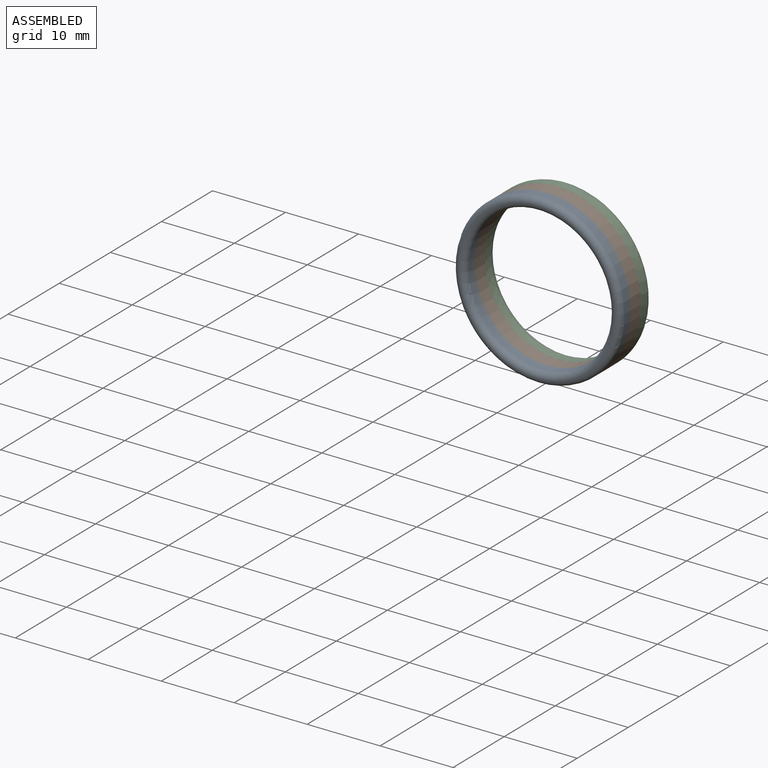
[diagram: assembled view]
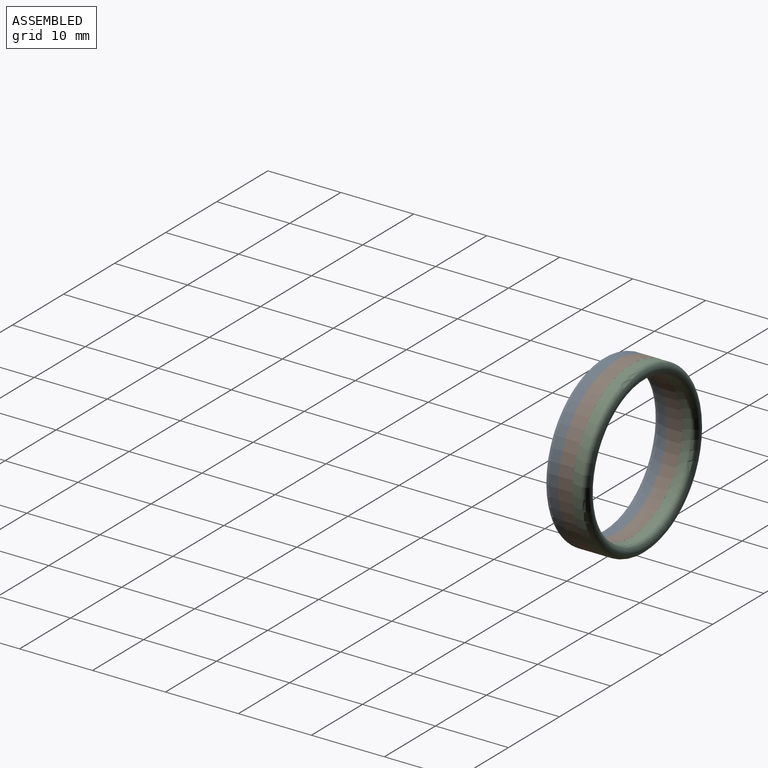
[diagram: assembled view, second angle]
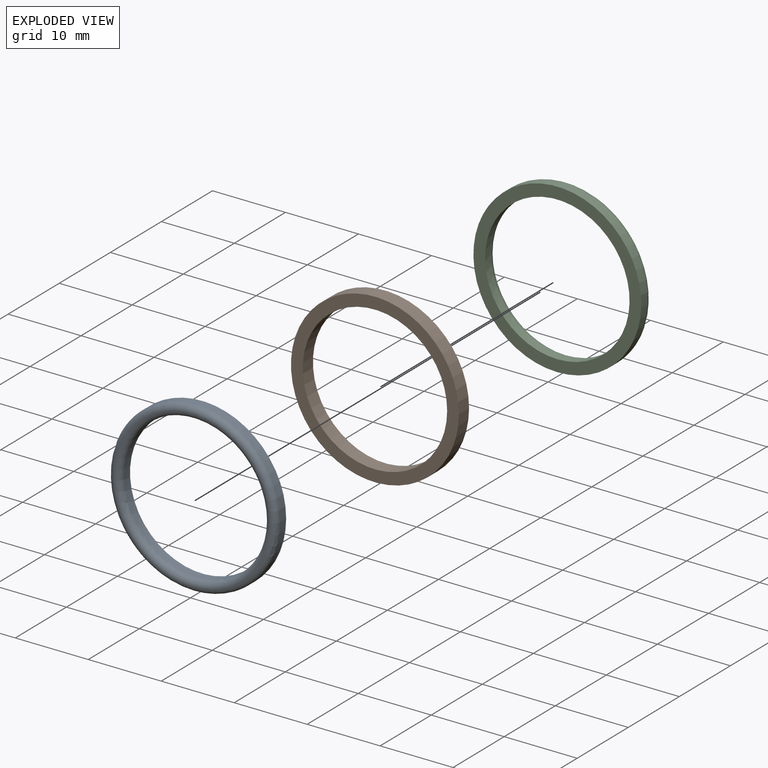
[diagram: exploded view]
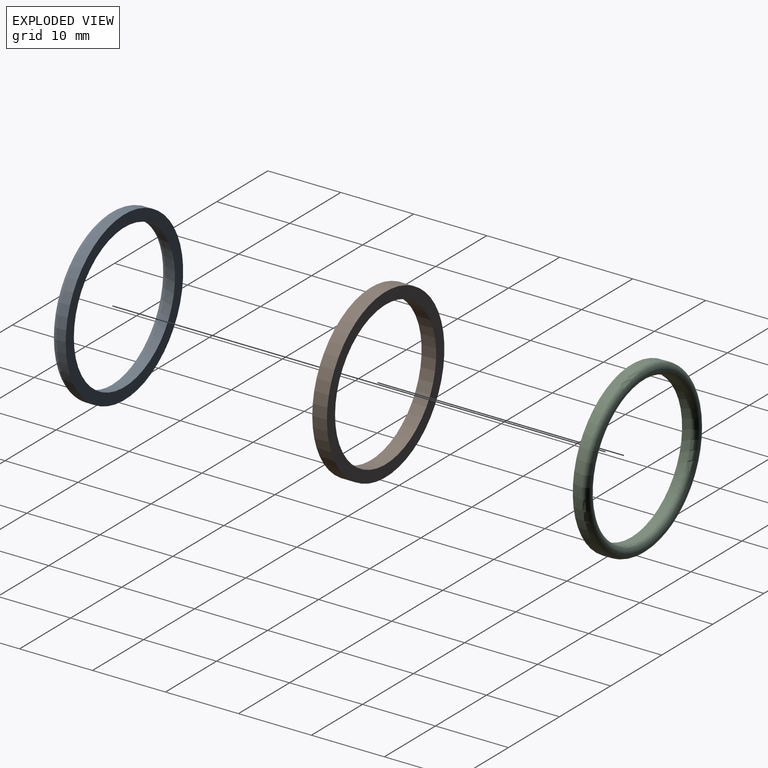
[diagram: exploded view, second angle]
ASSEMBLY  parts=3 mates=4
PART A: 4 faces, bbox 24.9x2x24.9 mm
  f0: cylinder r=9.9mm len=19.8mm, axis (0,1,0), area 74.6mm2, adj f2,f3
  f1: cylinder r=11.5mm len=23mm, axis (0,1,0), area 86.7mm2, adj f2,f3
  f2: plane 23x23mm, normal (0,1,0), area 107.6mm2, adj f0,f1
  f3: torus R=10.7mm, axis (0,-1,0), area 169mm2, adj f0,f1
PART B: 4 faces, bbox 23x2x23 mm
  f0: cylinder r=9.9mm len=19.8mm, axis (0,1,0), area 124.4mm2, adj f2,f3
  f1: cylinder r=11.5mm len=23mm, axis (0,1,0), area 144.5mm2, adj f2,f3
  f2: plane 23x23mm, normal (0,-1,0), area 107.6mm2, adj f0,f1
  f3: plane 23x23mm, normal (0,1,0), area 107.6mm2, adj f0,f1
PART C: 4 faces, bbox 24.9x2x24.9 mm
  f0: cylinder r=9.9mm len=19.8mm, axis (0,1,0), area 74.6mm2, adj f2,f3
  f1: cylinder r=11.5mm len=23mm, axis (0,1,0), area 86.7mm2, adj f2,f3
  f2: plane 23x23mm, normal (0,-1,0), area 107.6mm2, adj f0,f1
  f3: torus R=10.7mm, axis (0,-1,0), area 169mm2, adj f0,f1
PLACE A t=(-0.03,-0.15,0.09)mm
PLACE B t=(-0.03,1.85,0.09)mm fixed
PLACE C rot(axis=(0,1,0),90deg) t=(-0.03,3.85,0.09)mm
MATE slider B.f0 <-> A.f0  axis (0,1,0) through (-0.03,0.85,0.09)mm
MATE planar C.f0 <-> B.f0  axis (0,-1,0) through (-0.03,1.85,0.09)mm
MATE slider C.f0 <-> B.f0  axis (0,1,0) through (-0.03,2.45,0.09)mm
MATE planar B.f0 <-> A.f0  axis (0,-1,0) through (-0.03,-0.15,0.09)mm
